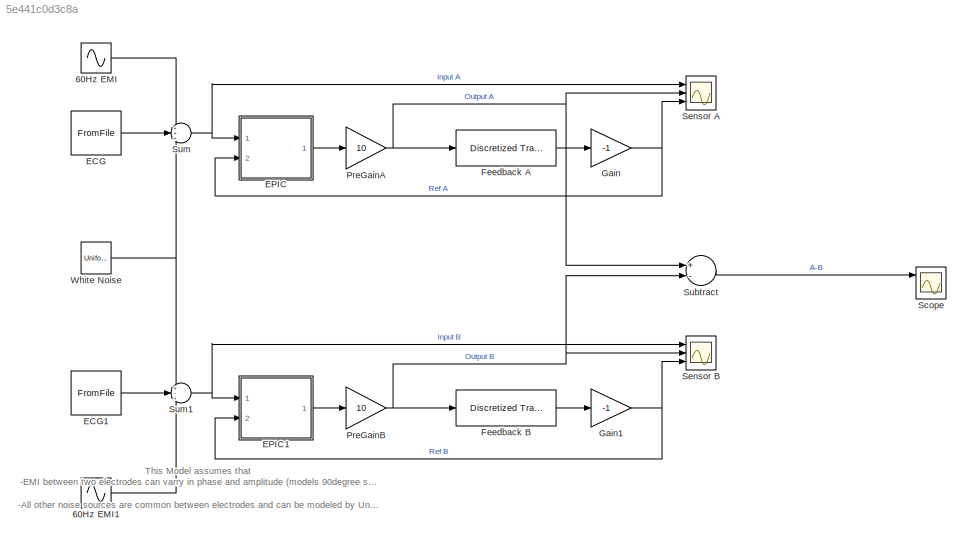
MODEL slx_5e441c0d3c8a
KIND model
CONFIG AbsTol = auto
CONFIG EnableMultiTasking = on
CONFIG FixedStep = 0.0001
CONFIG MaxStep = auto
CONFIG MinStep = auto
CONFIG RelTol = 1e-3
CONFIG SampleTimeConstraint = Unconstrained
CONFIG Solver = ode15s
CONFIG SolverName = ode15s
CONFIG StartTime = 0.0
CONFIG StopTime = 7
BLOCK [Sin] 60Hz EMI
  Amplitude = 0.3
  Frequency = 377
  Ports = [0, 1]
  SampleTime = 0.0001
BLOCK [Sin] 60Hz EMI1
  Amplitude = 0.35
  Frequency = 377
  Phase = 1.97
  Ports = [0, 1]
  SampleTime = 0.0001
BLOCK [FromFile] ECG
  FileName = SampleSignal_TimeSeries.mat
  SampleTime = 0
BLOCK [FromFile] ECG1
  FileName = SampleSignal_TimeSeries.mat
  SampleTime = 0
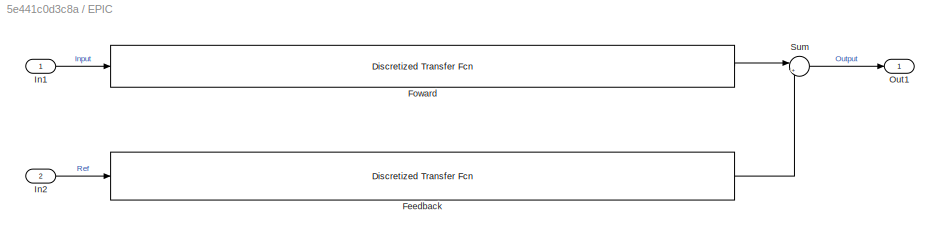
BLOCK [SubSystem] EPIC
  Ports = [2, 1]
  RequestExecContextInheritance = off
  ShowPortLabels = SignalName
BLOCK [Reference] EPIC/Feedback  REF=discretizing/Discretized  (lib defined in mdl_5048aa1cd587)
Transfer Fcn
  Ports = [1, 1]
  SourceBlock = discretizing/Discretized\nTransfer Fcn
  SourceType = DiscretizedTransferFcn
BLOCK [Reference] EPIC/Foward  REF=discretizing/Discretized  (lib defined in mdl_5048aa1cd587)
Transfer Fcn
  Ports = [1, 1]
  SourceBlock = discretizing/Discretized\nTransfer Fcn
  SourceType = DiscretizedTransferFcn
BLOCK [Inport] EPIC/In1
  IconDisplay = Port number
BLOCK [Inport] EPIC/In2
  IconDisplay = Port number
  Port = 2
BLOCK [Outport] EPIC/Out1
  IconDisplay = Port number
BLOCK [Sum] EPIC/Sum
  IconShape = round
  InputSameDT = off
  Inputs = |++
  OutDataTypeStr = Inherit: Inherit via internal rule
  OutMax = [100]
  OutMin = [-100]
  Ports = [2, 1]
  SaturateOnIntegerOverflow = off
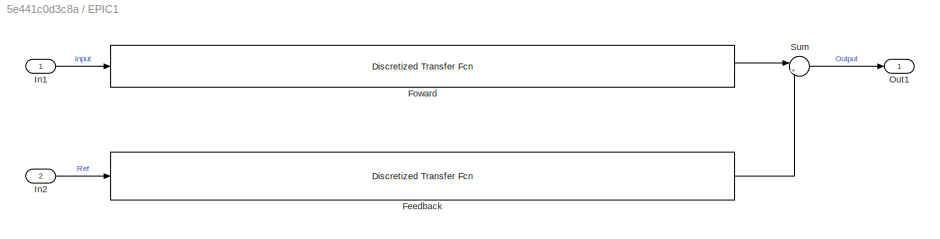
BLOCK [SubSystem] EPIC1
  Ports = [2, 1]
  RequestExecContextInheritance = off
  ShowPortLabels = SignalName
BLOCK [Reference] EPIC1/Feedback  REF=discretizing/Discretized  (lib defined in mdl_5048aa1cd587)
Transfer Fcn
  Ports = [1, 1]
  SourceBlock = discretizing/Discretized\nTransfer Fcn
  SourceType = DiscretizedTransferFcn
BLOCK [Reference] EPIC1/Foward  REF=discretizing/Discretized  (lib defined in mdl_5048aa1cd587)
Transfer Fcn
  Ports = [1, 1]
  SourceBlock = discretizing/Discretized\nTransfer Fcn
  SourceType = DiscretizedTransferFcn
BLOCK [Inport] EPIC1/In1
  IconDisplay = Port number
BLOCK [Inport] EPIC1/In2
  IconDisplay = Port number
  Port = 2
BLOCK [Outport] EPIC1/Out1
  IconDisplay = Port number
BLOCK [Sum] EPIC1/Sum
  IconShape = round
  InputSameDT = off
  Inputs = |++
  OutDataTypeStr = Inherit: Inherit via internal rule
  OutMax = [100]
  OutMin = [-100]
  Ports = [2, 1]
  SaturateOnIntegerOverflow = off
BLOCK [Reference] Feedback A  REF=discretizing/Discretized  (lib defined in mdl_5048aa1cd587)
Transfer Fcn
  Ports = [1, 1]
  SourceBlock = discretizing/Discretized\nTransfer Fcn
  SourceType = DiscretizedTransferFcn
BLOCK [Reference] Feedback B  REF=discretizing/Discretized  (lib defined in mdl_5048aa1cd587)
Transfer Fcn
  Ports = [1, 1]
  SourceBlock = discretizing/Discretized\nTransfer Fcn
  SourceType = DiscretizedTransferFcn
BLOCK [Gain] Gain
  Gain = -1
BLOCK [Gain] Gain1
  Gain = -1
BLOCK [Gain] PreGainA
  Gain = 10
  OutMax = 5
  OutMin = -5
BLOCK [Gain] PreGainB
  Gain = 10
  OutMax = 5
  OutMin = -5
BLOCK [Scope] Scope
  Floating = off
  NumInputPorts = 3
  Ports = [3]
  ScopeSpecificationString = Simulink.scopes.TimeScopeBlockCfg('CurrentConfiguration', extmgr.ConfigurationSet(extmgr.Configuration('Core','General UI',true),extmgr.Configuration('Core','Source UI',true),extmgr.Configuration('Sources','WiredSimulink',true,'DataLoggingVariableName','ScopeData2'),extmgr.Configuration('Visuals','Time Domain',true,'SerializedDisplays',{struct('MinYLimReal','-1.19705','MaxYLimReal','1.39859','YLab...<+1463ch>
BLOCK [Scope] Sensor A
  Floating = off
  NumInputPorts = 3
  Ports = [3]
  ScopeSpecificationString = Simulink.scopes.TimeScopeBlockCfg('CurrentConfiguration', extmgr.ConfigurationSet(extmgr.Configuration('Core','General UI',true),extmgr.Configuration('Core','Source UI',true),extmgr.Configuration('Sources','WiredSimulink',true),extmgr.Configuration('Visuals','Time Domain',true,'SerializedDisplays',{struct('MinYLimReal','-0.50991','MaxYLimReal','0.50699','YLabelReal','','MinYLimMag','0.00000','MaxY...<+2838ch>
BLOCK [Scope] Sensor B
  Floating = off
  NumInputPorts = 3
  Ports = [3]
  ScopeSpecificationString = Simulink.scopes.TimeScopeBlockCfg('CurrentConfiguration', extmgr.ConfigurationSet(extmgr.Configuration('Core','General UI',true),extmgr.Configuration('Core','Source UI',true),extmgr.Configuration('Sources','WiredSimulink',true,'DataLoggingVariableName','ScopeData1'),extmgr.Configuration('Visuals','Time Domain',true,'SerializedDisplays',{struct('MinYLimReal','-0.50991','MaxYLimReal','0.50699','YLab...<+2877ch>
BLOCK [Sum] Subtract
  InputSameDT = off
  Inputs = +-
  OutDataTypeStr = Inherit: Inherit via internal rule
  Ports = [2, 1]
  SaturateOnIntegerOverflow = off
BLOCK [Sum] Sum
  IconShape = round
  InputSameDT = off
  Inputs = +++
  OutDataTypeStr = Inherit: Inherit via internal rule
  Ports = [3, 1]
  SaturateOnIntegerOverflow = off
BLOCK [Sum] Sum1
  IconShape = round
  InputSameDT = off
  Inputs = +-+
  OutDataTypeStr = Inherit: Inherit via internal rule
  Ports = [3, 1]
  SaturateOnIntegerOverflow = off
BLOCK [UniformRandomNumber] White Noise
  Maximum = 0.1
  Minimum = -0.1
  SampleTime = 0.0001
ANNOTATION (root): This Model assumes that -EMI between two electrodes can varry in phase and amplitude (models 90degree shift and delta 50mV) -All other noise sources are common between electrodes and can be modeled by Uniform White Noise
LINE 60Hz EMI1:1 -> Sum1:3
LINE 60Hz EMI:1 -> Sum:1
LINE ECG1:1 -> Sum1:2
LINE ECG:1 -> Sum:2
LINE EPIC/Feedback:1 -> EPIC/Sum:2
LINE EPIC/Foward:1 -> EPIC/Sum:1
LINE EPIC/In1:1 -> EPIC/Foward:1
LINE EPIC/In2:1 -> EPIC/Feedback:1
LINE EPIC/Sum:1 -> EPIC/Out1:1
LINE EPIC1/Feedback:1 -> EPIC1/Sum:2
LINE EPIC1/Foward:1 -> EPIC1/Sum:1
LINE EPIC1/In1:1 -> EPIC1/Foward:1
LINE EPIC1/In2:1 -> EPIC1/Feedback:1
LINE EPIC1/Sum:1 -> EPIC1/Out1:1
LINE EPIC1:1 -> PreGainB:1
LINE EPIC:1 -> PreGainA:1
LINE Feedback A:1 -> Gain:1
LINE Feedback B:1 -> Gain1:1
NET Gain1:1 -> EPIC1:2, Sensor B:3
NET Gain:1 -> EPIC:2, Sensor A:3
NET PreGainA:1 -> Feedback A:1, Sensor A:2, Subtract:1
NET PreGainB:1 -> Feedback B:1, Sensor B:2, Subtract:2
LINE Subtract:1 -> Scope:1
NET Sum1:1 -> EPIC1:1, Sensor B:1
NET Sum:1 -> EPIC:1, Sensor A:1
NET White Noise:1 -> Sum1:1, Sum:3
note: NET lines group one-source signal fan-out (src -> all destinations, sorted); 1:1 wires keep LINE
